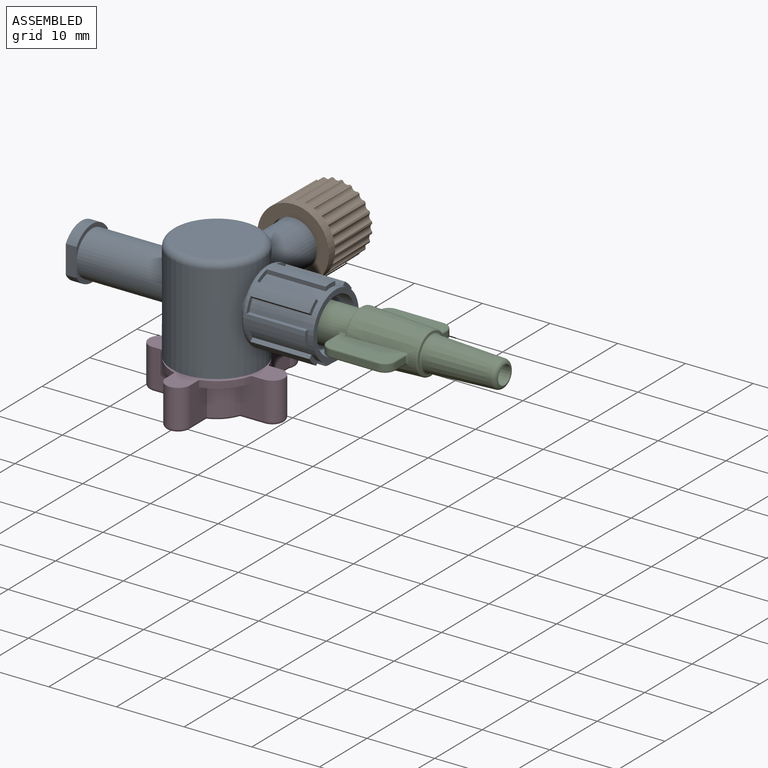
[diagram: assembled view]
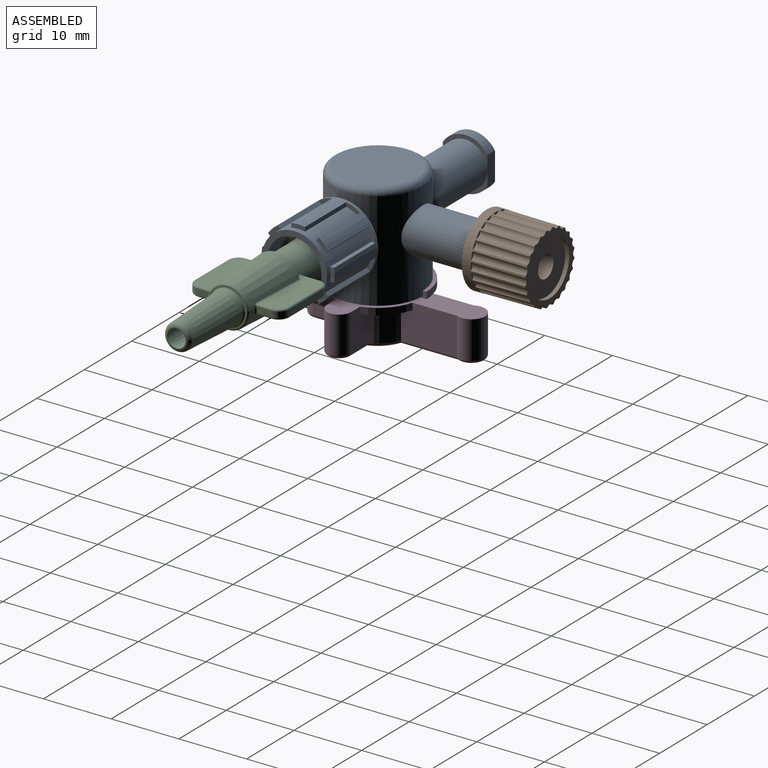
[diagram: assembled view, second angle]
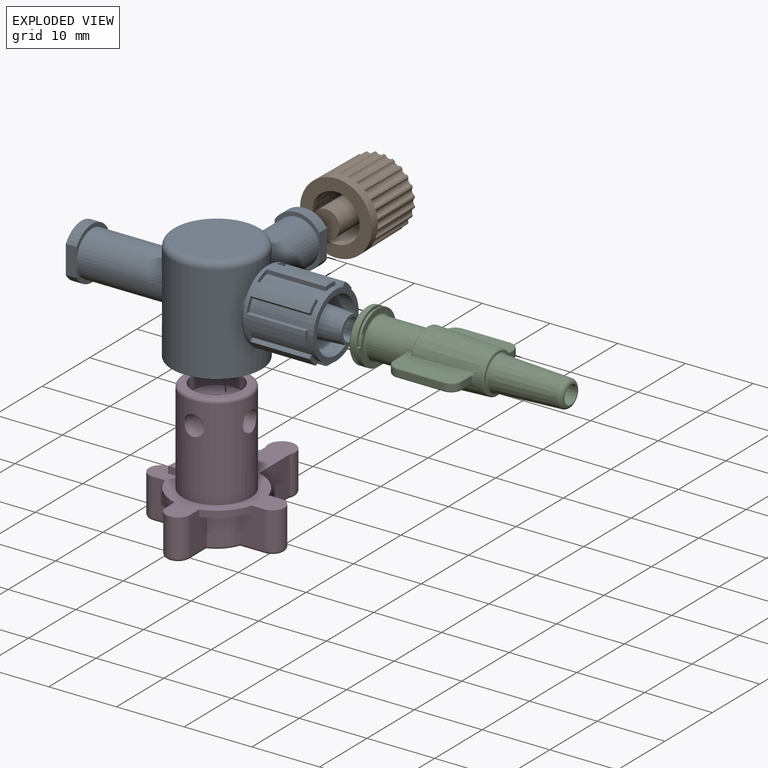
[diagram: exploded view]
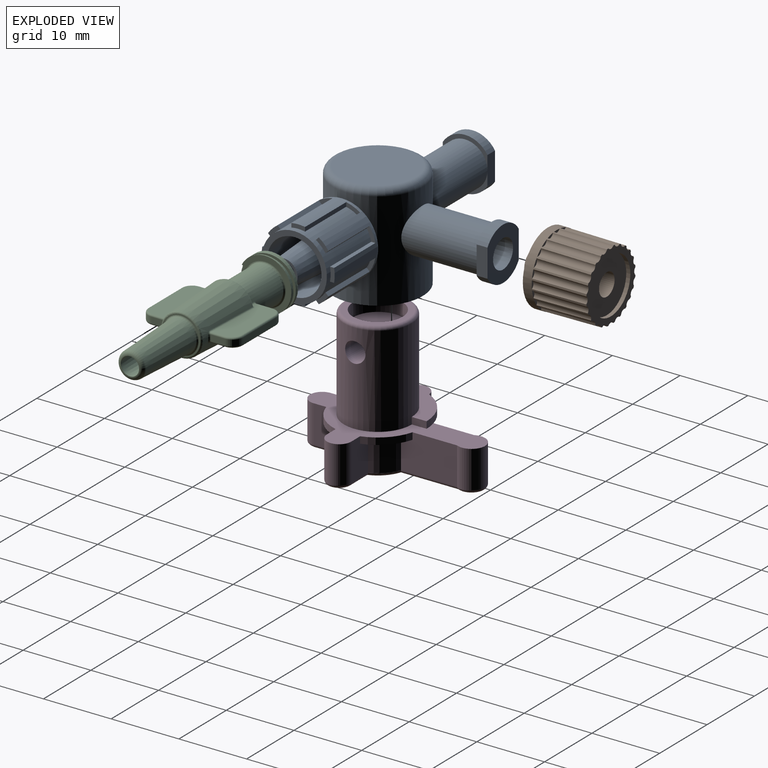
[diagram: exploded view, second angle]
ASSEMBLY  parts=4 mates=3
PART A: 72 faces, bbox 39.8x25.7x15.6 mm
  f0: cylinder r=5.25mm len=13.7mm, axis (0,0,-1), area 430.5mm2, adj f5,f38,f63,f70,f71
  f1: cylinder r=3.9mm len=6.6mm, axis (-1,0,0), area 12.6mm2, adj f2,f27,f68,f69
  f2: plane 6.6x3.9mm, normal (1,0,0), area 5.1mm2, adj f1,f32,f68,f69
  f3: cylinder r=3.9mm len=6.6mm, axis (0,-1,0), area 12.6mm2, adj f34,f36,f66,f67
  f4: plane 6.6x3.9mm, normal (0,-1,0), area 5.1mm2, adj f33,f35,f66,f67
  f5: plane 13.3x13.3mm, normal (0,0,-1), area 52.3mm2, adj f0,f25
  f6: plane 2.05x1.28mm, normal (1,0,0), area 1.2mm2, adj f8,f17,f40,f60
  f7: plane 2.05x1.28mm, normal (1,0,0), area 1.2mm2, adj f8,f17,f57,f61
  f8: cylinder r=4.8mm len=9.6mm, axis (-1,0,0), area 146.3mm2, adj f6,f7,f9,f10,f11,f12,f13,f14
  f9: plane 2.05x1.28mm, normal (1,0,0), area 1.2mm2, adj f8,f17,f54,f58
  f10: plane 2.05x1.28mm, normal (1,0,0), area 1.2mm2, adj f8,f17,f51,f55
  f11: plane 2.05x1.28mm, normal (1,0,0), area 1.2mm2, adj f8,f17,f48,f52
  f12: plane 2.05x1.28mm, normal (1,0,0), area 1.2mm2, adj f8,f17,f45,f49
  f13: plane 2.05x1.28mm, normal (1,0,0), area 1.2mm2, adj f8,f17,f42,f46
  f14: plane 2.05x1.28mm, normal (1,0,0), area 1.2mm2, adj f8,f17,f39,f43
  f15: cylinder r=3.15mm len=6.3mm, axis (-1,0,0), area 20.6mm2, adj f19,f25
  f16: cone r=1.6mm half-angle=0.3deg, axis (1,0,0), area 130.4mm2, adj f20,f26
  f17: cylinder r=5.4mm len=10.8mm, axis (-1,0,0), area 150.2mm2, adj f6,f7,f9,f10,f11,f12,f13,f14
  f18: torus R=4.9mm, axis (-1,0,0), area 25.8mm2, adj f17,f19
  f19: plane 9.8x9.8mm, normal (-1,0,0), area 44.3mm2, adj f15,f18
  f20: plane 4x4mm, normal (1,0,0), area 4.5mm2, adj f16,f21
  f21: cone r=2.68mm half-angle=3.5deg, axis (-1,0,0), area 163.9mm2, adj f20,f22
  f22: plane 8x8mm, normal (1,0,0), area 27.7mm2, adj f21,f23
  f23: cylinder r=4mm len=8.93mm, axis (-1,0,0), area 224.4mm2, adj f22,f24
  f24: plane 9.6x9.6mm, normal (1,0,0), area 22.1mm2, adj f8,f23
  f25: cylinder r=6.65mm len=14.6mm, axis (0,0,-1), area 507.2mm2, adj f5,f15,f32,f35,f65
  f26: cylinder r=6.65mm len=3.07mm, axis (0,0,-1), area 0.3mm2, adj f16,f70
  f27: plane 7.8x6.6mm, normal (-1,0,0), area 30.3mm2, adj f1,f28,f30,f68,f69
  f28: cone r=1.51mm half-angle=3.5deg, axis (-1,0,0), area 114.2mm2, adj f27,f29
  f29: cone r=1.5mm half-angle=0.1deg, axis (-1,0,0), area 31.9mm2, adj f28,f71
  f30: cylinder r=3.9mm len=6.6mm, axis (-1,0,0), area 12.6mm2, adj f27,f31,f68,f69
  f31: plane 6.6x3.9mm, normal (1,0,0), area 5.1mm2, adj f30,f32,f68,f69
  f32: cylinder r=3.3mm len=12.63mm, axis (-1,0,0), area 252.6mm2, adj f2,f25,f31
  f33: cylinder r=3.9mm len=6.6mm, axis (0,-1,0), area 12.6mm2, adj f4,f36,f66,f67
  f34: plane 6.6x3.9mm, normal (0,-1,0), area 5.1mm2, adj f3,f35,f66,f67
  f35: cylinder r=3.3mm len=11.13mm, axis (0,-1,0), area 221.5mm2, adj f4,f25,f34
  f36: plane 7.8x6.6mm, normal (0,1,0), area 30.5mm2, adj f3,f33,f37,f66,f67
  f37: cone r=2.1mm half-angle=3.5deg, axis (0,1,0), area 111.9mm2, adj f36,f38
  f38: cylinder r=1.5mm len=3.59mm, axis (0,-1,0), area 32.8mm2, adj f0,f37
  f39: plane 8.7x0.61mm, normal (0,0,-1), area 5.3mm2, adj f8,f14,f17,f41
  f40: plane 8.7x0.61mm, normal (0,0,1), area 5.3mm2, adj f6,f8,f17,f41
  f41: plane 2x0.71mm, normal (1,0,0), area 1.2mm2, adj f8,f17,f39,f40
  f42: plane 8.7x0.43mm, normal (0,-0.71,-0.71), area 5.3mm2, adj f8,f13,f17,f44
  f43: plane 8.7x0.43mm, normal (0,0.71,0.71), area 5.3mm2, adj f8,f14,f17,f44
  f44: plane 1.85x1.85mm, normal (1,0,0), area 1.2mm2, adj f8,f17,f42,f43
  f45: plane 8.7x0.61mm, normal (0,-1,0), area 5.3mm2, adj f8,f12,f17,f47
  f46: plane 8.7x0.61mm, normal (0,1,0), area 5.3mm2, adj f8,f13,f17,f47
  f47: plane 2x0.71mm, normal (1,0,0), area 1.2mm2, adj f8,f17,f45,f46
  f48: plane 8.7x0.43mm, normal (0,-0.71,0.71), area 5.3mm2, adj f8,f11,f17,f50
  f49: plane 8.7x0.43mm, normal (0,0.71,-0.71), area 5.3mm2, adj f8,f12,f17,f50
  f50: plane 1.85x1.85mm, normal (1,0,0), area 1.2mm2, adj f8,f17,f48,f49
  f51: plane 8.7x0.61mm, normal (0,0,1), area 5.3mm2, adj f8,f10,f17,f53
  f52: plane 8.7x0.61mm, normal (0,0,-1), area 5.3mm2, adj f8,f11,f17,f53
  f53: plane 2x0.71mm, normal (1,0,0), area 1.2mm2, adj f8,f17,f51,f52
  f54: plane 8.7x0.43mm, normal (0,0.71,0.71), area 5.3mm2, adj f8,f9,f17,f56
  f55: plane 8.7x0.43mm, normal (0,-0.71,-0.71), area 5.3mm2, adj f8,f10,f17,f56
  f56: plane 1.85x1.85mm, normal (1,0,0), area 1.2mm2, adj f8,f17,f54,f55
  f57: plane 8.7x0.61mm, normal (0,1,0), area 5.3mm2, adj f7,f8,f17,f59
  f58: plane 8.7x0.61mm, normal (0,-1,0), area 5.3mm2, adj f8,f9,f17,f59
  f59: plane 2x0.71mm, normal (1,0,0), area 1.2mm2, adj f8,f17,f57,f58
  f60: plane 8.7x0.43mm, normal (0,0.71,-0.71), area 5.3mm2, adj f6,f8,f17,f62
  f61: plane 8.7x0.43mm, normal (0,-0.71,0.71), area 5.3mm2, adj f7,f8,f17,f62
  f62: plane 1.85x1.85mm, normal (1,0,0), area 1.2mm2, adj f8,f17,f60,f61
  f63: plane 10.5x10.5mm, normal (0,0,-1), area 86.6mm2, adj f0
  f64: plane 11.3x11.3mm, normal (0,0,1), area 100.3mm2, adj f65
  f65: torus R=5.65mm, axis (0,0,-1), area 62mm2, adj f25,f64
  f66: plane 4.16x1.6mm, normal (1,0,0), area 6.7mm2, adj f3,f4,f33,f34,f36
  f67: plane 4.16x1.6mm, normal (-1,0,0), area 6.7mm2, adj f3,f4,f33,f34,f36
  f68: plane 4.16x1.6mm, normal (0,1,0), area 6.7mm2, adj f1,f2,f27,f30,f31
  f69: plane 4.16x1.6mm, normal (0,-1,0), area 6.7mm2, adj f1,f2,f27,f30,f31
  f70: cylinder r=1.5mm len=3.01mm, axis (1,0,0), area 13.6mm2, adj f0,f26
  f71: cylinder r=1.5mm len=3.01mm, axis (1,0,0), area 14mm2, adj f0,f29
PART B: 59 faces, bbox 10.6x10.6x11.4 mm
  f0: cylinder r=1.64mm len=9mm, axis (0,0,1), area 92.7mm2, adj f1,f56
  f1: plane 3.28x3.28mm, normal (0,0,-1), area 8.4mm2, adj f0
  f2: plane 1.01x0.67mm, normal (0,0,-1), area 0.3mm2, adj f3,f50
  f3: cylinder r=0.67mm len=8mm, axis (0,0,1), area 10.5mm2, adj f2,f50,f57
  f4: plane 1.01x0.67mm, normal (0,0,-1), area 0.3mm2, adj f5,f50
  f5: cylinder r=0.67mm len=8mm, axis (0,0,1), area 10.5mm2, adj f4,f50,f57
  f6: plane 1.16x0.37mm, normal (0,0,-1), area 0.3mm2, adj f7,f50
  f7: cylinder r=0.67mm len=8mm, axis (0,0,1), area 10.5mm2, adj f6,f50,f57
  f8: plane 1.01x0.67mm, normal (0,0,-1), area 0.3mm2, adj f9,f50
  f9: cylinder r=0.67mm len=8mm, axis (0,0,1), area 10.5mm2, adj f8,f50,f57
  f10: plane 1.01x0.67mm, normal (0,0,-1), area 0.3mm2, adj f11,f50
  f11: cylinder r=0.67mm len=8mm, axis (0,0,1), area 10.5mm2, adj f10,f50,f57
  f12: plane 1.16x0.37mm, normal (0,0,-1), area 0.3mm2, adj f13,f50
  f13: cylinder r=0.67mm len=8mm, axis (0,0,1), area 10.5mm2, adj f12,f50,f57
  f14: plane 1.01x0.67mm, normal (0,0,-1), area 0.3mm2, adj f15,f50
  f15: cylinder r=0.67mm len=8mm, axis (0,0,1), area 10.5mm2, adj f14,f50,f57
  f16: plane 1.01x0.67mm, normal (0,0,-1), area 0.3mm2, adj f17,f50
  f17: cylinder r=0.67mm len=8mm, axis (0,0,1), area 10.5mm2, adj f16,f50,f57
  f18: plane 1.16x0.37mm, normal (0,0,-1), area 0.3mm2, adj f19,f50
  f19: cylinder r=0.67mm len=8mm, axis (0,0,1), area 10.5mm2, adj f18,f50,f57
  f20: plane 1.01x0.67mm, normal (0,0,-1), area 0.3mm2, adj f21,f50
  f21: cylinder r=0.67mm len=8mm, axis (0,0,1), area 10.5mm2, adj f20,f50,f57
  f22: plane 1.01x0.67mm, normal (0,0,-1), area 0.3mm2, adj f23,f50
  f23: cylinder r=0.67mm len=8mm, axis (0,0,1), area 10.5mm2, adj f22,f50,f57
  f24: plane 1.16x0.37mm, normal (0,0,-1), area 0.3mm2, adj f25,f50
  f25: cylinder r=0.67mm len=8mm, axis (0,0,1), area 10.5mm2, adj f24,f50,f57
  f26: plane 1.12x0.5mm, normal (0,0,-1), area 0.3mm2, adj f27,f50
  f27: cylinder r=0.67mm len=8mm, axis (0,0,1), area 10.5mm2, adj f26,f50,f57
  f28: plane 0.85x0.85mm, normal (0,0,-1), area 0.3mm2, adj f29,f50
  f29: cylinder r=0.67mm len=8mm, axis (0,0,1), area 10.5mm2, adj f28,f50,f57
  f30: plane 1.12x0.5mm, normal (0,0,-1), area 0.3mm2, adj f31,f50
  f31: cylinder r=0.67mm len=8mm, axis (0,0,1), area 10.5mm2, adj f30,f50,f57
  f32: plane 1.12x0.5mm, normal (0,0,-1), area 0.3mm2, adj f33,f50
  f33: cylinder r=0.67mm len=8mm, axis (0,0,1), area 10.5mm2, adj f32,f50,f57
  f34: plane 0.85x0.85mm, normal (0,0,-1), area 0.3mm2, adj f35,f50
  f35: cylinder r=0.67mm len=8mm, axis (0,0,1), area 10.5mm2, adj f34,f50,f57
  f36: plane 1.12x0.5mm, normal (0,0,-1), area 0.3mm2, adj f37,f50
  f37: cylinder r=0.67mm len=8mm, axis (0,0,1), area 10.5mm2, adj f36,f50,f57
  f38: plane 1.12x0.5mm, normal (0,0,-1), area 0.3mm2, adj f39,f50
  f39: cylinder r=0.67mm len=8mm, axis (0,0,1), area 10.5mm2, adj f38,f50,f57
  f40: cylinder r=0.67mm len=8mm, axis (0,0,1), area 10.5mm2, adj f41,f50,f57
  f41: plane 0.85x0.85mm, normal (0,0,-1), area 0.3mm2, adj f40,f50
  f42: plane 1.12x0.5mm, normal (0,0,-1), area 0.3mm2, adj f43,f50
  f43: cylinder r=0.67mm len=8mm, axis (0,0,1), area 10.5mm2, adj f42,f50,f57
  f44: plane 1.12x0.5mm, normal (0,0,-1), area 0.3mm2, adj f45,f50
  f45: cylinder r=0.67mm len=8mm, axis (0,0,1), area 10.5mm2, adj f44,f50,f57
  f46: cylinder r=0.67mm len=8mm, axis (0,0,1), area 10.5mm2, adj f47,f50,f57
  f47: plane 0.85x0.85mm, normal (0,0,-1), area 0.3mm2, adj f46,f50
  f48: plane 1.12x0.5mm, normal (0,0,-1), area 0.3mm2, adj f49,f50
  f49: cylinder r=0.67mm len=8mm, axis (0,0,1), area 10.5mm2, adj f48,f50,f57
  f50: cone r=5.3mm half-angle=0.6deg, axis (0,0,1), area 93.7mm2, adj f2,f3,f4,f5,f6,f7,f8,f9
  f51: cylinder r=2mm len=9mm, axis (0,0,1), area 113.1mm2, adj f52,f54
  f52: plane 4x4mm, normal (0,0,1), area 12.6mm2, adj f51
  f53: cone r=3.5mm half-angle=0.6deg, axis (0,0,1), area 150.1mm2, adj f54,f58
  f54: plane 6.85x6.85mm, normal (0,0,1), area 24.3mm2, adj f51,f53
  f55: cylinder r=4.1mm len=8.2mm, axis (0,0,1), area 15.5mm2, adj f56,f57
  f56: plane 8.2x8.2mm, normal (0,0,-1), area 44.4mm2, adj f0,f55
  f57: plane 10.35x10.35mm, normal (0,0,-1), area 27.1mm2, adj f3,f5,f7,f9,f11,f13,f15,f17
  f58: plane 10.6x10.6mm, normal (0,0,1), area 49.8mm2, adj f50,f53
PART C: 101 faces, bbox 30.5x8.7x14.3 mm
  f0: cone r=3.75mm half-angle=45deg, axis (1,0,0), area 8.4mm2, adj f1,f2,f3,f100
  f1: plane 0.51x0.38mm, normal (0,1,0), area 0.2mm2, adj f0,f2,f6,f8,f100
  f2: bspline ~7.75x7.75mm, area 8.9mm2, adj f0,f1,f6,f7,f100
  f3: plane 7.24x7.24mm, normal (-1,0,0), area 23.3mm2, adj f0,f4
  f4: cone r=2.25mm half-angle=45deg, axis (-1,0,0), area 5.1mm2, adj f3,f5
  f5: cylinder r=2.13mm len=4.25mm, axis (1,0,0), area 5.1mm2, adj f4,f93
  f6: cylinder r=3.49mm len=6.99mm, axis (1,0,0), area 11.1mm2, adj f1,f2,f7,f8,f9
  f7: plane 0.43x0.38mm, normal (0,-1,0), area 0.2mm2, adj f2,f6,f9,f100
  f8: bspline ~8.73x8.28mm, area 8.2mm2, adj f1,f6,f9,f100
  f9: plane 7.75x7.75mm, normal (1,0,0), area 16.6mm2, adj f6,f7,f8,f64,f100
  f10: cylinder r=0.25mm len=0.68mm, axis (-1,0,0), area 0.2mm2, adj f11,f24,f34,f56
  f11: bspline ~0.51x0.47mm, area 0.2mm2, adj f10,f12,f33,f56
  f12: torus R=3.09mm, axis (-1,0,0), area 0.3mm2, adj f11,f13,f32,f56
  f13: bspline ~0.51x0.47mm, area 0.2mm2, adj f12,f14,f31,f56
  f14: cylinder r=0.25mm len=0.68mm, axis (1,0,0), area 0.2mm2, adj f13,f25,f56,f63
  f15: bspline ~0.26x0.25mm, area 0.1mm2, adj f16,f25,f26,f63
  f16: bspline ~0.53x0.52mm, area 0.2mm2, adj f15,f17,f27,f63
  f17: bspline ~8.45x0.64mm, area 2.8mm2, adj f16,f18,f28,f63
  f18: bspline ~0.51x0.47mm, area 0.2mm2, adj f17,f19,f28,f76
  f19: torus R=3.36mm, axis (1,0,0), area 0.3mm2, adj f18,f20,f28,f72
  f20: bspline ~0.51x0.47mm, area 0.2mm2, adj f19,f23,f28,f65
  f21: bspline ~0.53x0.52mm, area 0.2mm2, adj f22,f23,f30,f34
  f22: bspline ~0.26x0.25mm, area 0.1mm2, adj f21,f24,f34,f62
  f23: bspline ~8.45x0.64mm, area 2.8mm2, adj f20,f21,f29,f34
  f24: sphere r=0.25mm, area 0.1mm2, adj f10,f22,f61
  f25: sphere r=0.25mm, area 0.1mm2, adj f14,f15,f55
  f26: cone r=3.17mm half-angle=87.4deg, axis (1,0,0), area 1.5mm2, adj f15,f27,f39,f55
  f27: torus R=3.25mm, axis (1,0,0), area 3.6mm2, adj f16,f26,f28,f40
  f28: cone r=3.28mm half-angle=2.6deg, axis (-1,0,0), area 173.5mm2, adj f17,f18,f19,f20,f27,f29,f30,f35
  f29: cone r=3.28mm half-angle=2.6deg, axis (-1,0,0), area 0.4mm2, adj f23,f28,f30
  f30: torus R=3.25mm, axis (1,0,0), area 3.6mm2, adj f21,f28,f29,f37,f62
  f31: cylinder r=0.25mm len=2.48mm, axis (0,0,-1), area 1mm2, adj f13,f32,f63,f73
  f32: plane 2.36x0.89mm, normal (-1,0,0), area 2.1mm2, adj f12,f31,f33,f69
  f33: cylinder r=0.25mm len=2.48mm, axis (0,0,1), area 1mm2, adj f11,f32,f34,f68
  f34: plane 9.65x3.81mm, normal (0,1,0), area 31.5mm2, adj f10,f21,f22,f23,f33,f65,f66,f67
  f35: bspline ~0.51x0.47mm, area 0.2mm2, adj f28,f36,f43,f77
  f36: bspline ~8.45x0.64mm, area 2.8mm2, adj f28,f35,f37,f51
  f37: bspline ~0.53x0.52mm, area 0.2mm2, adj f30,f36,f38,f51
  f38: bspline ~0.26x0.25mm, area 0.1mm2, adj f37,f49,f51,f62
  f39: bspline ~0.26x0.25mm, area 0.1mm2, adj f26,f40,f50,f85
  f40: bspline ~0.53x0.52mm, area 0.2mm2, adj f27,f39,f41,f85
  f41: bspline ~8.45x0.64mm, area 2.8mm2, adj f28,f40,f42,f85
  f42: bspline ~0.51x0.47mm, area 0.2mm2, adj f28,f41,f43,f84
  f43: torus R=3.36mm, axis (1,0,0), area 0.3mm2, adj f28,f35,f42,f92
  f44: cylinder r=0.25mm len=0.68mm, axis (1,0,0), area 0.2mm2, adj f45,f49,f51,f56
  f45: bspline ~0.51x0.47mm, area 0.2mm2, adj f44,f46,f52,f56
  f46: torus R=3.09mm, axis (-1,0,0), area 0.3mm2, adj f45,f47,f53,f56
  f47: bspline ~0.51x0.47mm, area 0.2mm2, adj f46,f48,f54,f56
  f48: cylinder r=0.25mm len=0.68mm, axis (-1,0,0), area 0.2mm2, adj f47,f50,f56,f85
  f49: sphere r=0.25mm, area 0.1mm2, adj f38,f44,f61
  f50: sphere r=0.25mm, area 0.1mm2, adj f39,f48,f55
  f51: plane 9.65x3.81mm, normal (0,1,0), area 31.5mm2, adj f36,f37,f38,f44,f52,f77,f78,f79
  f52: cylinder r=0.25mm len=2.48mm, axis (0,0,-1), area 1mm2, adj f45,f51,f53,f80
  f53: plane 2.36x0.89mm, normal (-1,0,0), area 2.1mm2, adj f46,f52,f54,f91
  f54: cylinder r=0.25mm len=2.48mm, axis (0,0,1), area 1mm2, adj f47,f53,f81,f85
  f55: torus R=3.09mm, axis (1,0,0), area 2.8mm2, adj f25,f26,f50,f56
  f56: cylinder r=2.83mm len=6.75mm, axis (1,0,0), area 116.4mm2, adj f10,f11,f12,f13,f14,f44,f45,f46
  f57: torus R=2.68mm, axis (1,0,0), area 6.1mm2, adj f58,f59
  f58: plane 5.61x5.61mm, normal (1,0,0), area 2.1mm2, adj f57,f60
  f59: cone r=2.2mm half-angle=2.6deg, axis (-1,0,0), area 137.6mm2, adj f57,f88
  f60: torus R=2.81mm, axis (1,0,0), area 7.2mm2, adj f28,f58
  f61: torus R=3.09mm, axis (1,0,0), area 2.8mm2, adj f24,f49,f56,f62
  f62: cone r=3.17mm half-angle=87.4deg, axis (1,0,0), area 1.5mm2, adj f22,f30,f38,f61
  f63: plane 9.65x3.81mm, normal (0,-1,0), area 31.5mm2, adj f14,f15,f16,f17,f31,f73,f74,f75
  f64: torus R=3.09mm, axis (1,0,0), area 7.3mm2, adj f9,f56
  f65: cylinder r=0.25mm len=2.17mm, axis (0,0,-1), area 0.8mm2, adj f20,f34,f66,f72
  f66: torus R=1.33mm, axis (0,-1,0), area 0.9mm2, adj f34,f65,f67,f71
  f67: cylinder r=0.25mm len=6.99mm, axis (-1,0,0), area 2.8mm2, adj f34,f66,f68,f70
  f68: torus R=1.33mm, axis (0,-1,0), area 0.9mm2, adj f33,f34,f67,f69
  f69: cylinder r=1.59mm len=1.59mm, axis (0,1,0), area 2.2mm2, adj f32,f68,f70,f73
  f70: plane 6.99x0.89mm, normal (0,0,-1), area 6.2mm2, adj f67,f69,f71,f74
  f71: cylinder r=1.59mm len=1.59mm, axis (0,1,0), area 2.2mm2, adj f66,f70,f72,f75
  f72: plane 2.09x0.89mm, normal (1,0,0), area 1.8mm2, adj f19,f65,f71,f76
  f73: torus R=1.33mm, axis (0,1,0), area 0.9mm2, adj f31,f63,f69,f74
  f74: cylinder r=0.25mm len=6.99mm, axis (1,0,0), area 2.8mm2, adj f63,f70,f73,f75
  f75: torus R=1.33mm, axis (0,1,0), area 0.9mm2, adj f63,f71,f74,f76
  f76: cylinder r=0.25mm len=2.17mm, axis (0,0,1), area 0.8mm2, adj f18,f63,f72,f75
  f77: cylinder r=0.25mm len=2.17mm, axis (0,0,1), area 0.8mm2, adj f35,f51,f78,f92
  f78: torus R=1.33mm, axis (0,-1,0), area 0.9mm2, adj f51,f77,f79,f89
  f79: cylinder r=0.25mm len=6.99mm, axis (-1,0,0), area 2.8mm2, adj f51,f78,f80,f90
  f80: torus R=1.33mm, axis (0,-1,0), area 0.9mm2, adj f51,f52,f79,f91
  f81: torus R=1.33mm, axis (0,1,0), area 0.9mm2, adj f54,f82,f85,f91
  f82: cylinder r=0.25mm len=6.99mm, axis (1,0,0), area 2.8mm2, adj f81,f83,f85,f90
  f83: torus R=1.33mm, axis (0,1,0), area 0.9mm2, adj f82,f84,f85,f89
  f84: cylinder r=0.25mm len=2.17mm, axis (0,0,-1), area 0.8mm2, adj f42,f83,f85,f92
  f85: plane 9.65x3.81mm, normal (0,-1,0), area 31.5mm2, adj f39,f40,f41,f48,f54,f81,f82,f83
  f86: torus R=1.96mm, axis (1,0,0), area 1.6mm2, adj f87,f88
  f87: cone r=1.56mm half-angle=2.6deg, axis (-1,0,0), area 111.4mm2, adj f86,f99
  f88: torus R=1.35mm, axis (1,0,0), area 10.6mm2, adj f59,f86
  f89: cylinder r=1.59mm len=1.59mm, axis (0,1,0), area 2.2mm2, adj f78,f83,f90,f92
  f90: plane 6.99x0.89mm, normal (0,0,1), area 6.2mm2, adj f79,f82,f89,f91
  f91: cylinder r=1.59mm len=1.59mm, axis (0,1,0), area 2.2mm2, adj f53,f80,f81,f90
  f92: plane 2.09x0.89mm, normal (1,0,0), area 1.8mm2, adj f43,f77,f84,f89
  f93: plane 6.48x6.48mm, normal (1,0,0), area 18.7mm2, adj f5,f94
  f94: cylinder r=3.24mm len=6.48mm, axis (1,0,0), area 7.8mm2, adj f93,f95
  f95: plane 6.48x6.48mm, normal (-1,0,0), area 17.8mm2, adj f94,f96
  f96: cylinder r=2.2mm len=8.49mm, axis (1,0,0), area 117.2mm2, adj f95,f97
  f97: cone r=3.15mm half-angle=87.4deg, axis (1,0,0), area 10.4mm2, adj f96,f98
  f98: cone r=2.65mm half-angle=2.6deg, axis (-1,0,0), area 153.6mm2, adj f97,f99
  f99: plane 4.88x4.88mm, normal (-1,0,0), area 8.2mm2, adj f87,f98
  f100: cylinder r=3.87mm len=7.75mm, axis (1,0,0), area 21.7mm2, adj f0,f1,f2,f7,f8,f9
PART D: 112 faces, bbox 20.3x26.1x20.2 mm
  f0: plane 25.8x20mm, normal (0,0,1), area 107.8mm2, adj f1,f4,f5,f6,f8,f9,f10,f12
  f1: cylinder r=5mm len=13.5mm, axis (0,0,-1), area 394.8mm2, adj f0,f49,f52,f53,f108,f110,f111
  f2: plane 24.8x19mm, normal (0,0,-1), area 57.5mm2, adj f33,f34,f35,f36,f37,f38,f39,f40
  f3: cylinder r=5mm len=4.5mm, axis (0,0,1), area 18.8mm2, adj f4,f18,f29,f47
  f4: plane 5.5x3.54mm, normal (0,-1,0), area 17.8mm2, adj f0,f3,f5,f22,f29,f45
  f5: cylinder r=1.8mm len=5.5mm, axis (0,0,1), area 31.1mm2, adj f0,f4,f6,f43
  f6: plane 5.5x3.54mm, normal (0,1,0), area 17.8mm2, adj f0,f5,f7,f23,f26,f41,f107
  f7: cylinder r=5mm len=4.5mm, axis (0,0,1), area 18.8mm2, adj f6,f8,f26,f39
  f8: plane 8.26x5.5mm, normal (-1,0,0), area 43.8mm2, adj f0,f7,f9,f23,f26,f37,f107
  f9: cylinder r=2mm len=5.5mm, axis (0,0,1), area 44.5mm2, adj f0,f8,f10,f35
  f10: plane 8.26x5.5mm, normal (1,0,0), area 43.8mm2, adj f0,f9,f11,f24,f27,f33
  f11: cylinder r=5mm len=4.5mm, axis (0,0,1), area 18.8mm2, adj f10,f12,f27,f34
  f12: plane 5.5x3.54mm, normal (0,1,0), area 17.8mm2, adj f0,f11,f13,f24,f27,f36
  f13: cylinder r=1.8mm len=5.5mm, axis (0,0,1), area 31.1mm2, adj f0,f12,f14,f38
  f14: plane 5.5x3.54mm, normal (0,-1,0), area 17.8mm2, adj f0,f13,f15,f25,f28,f40
  f15: cylinder r=5mm len=4.5mm, axis (0,0,1), area 18.8mm2, adj f14,f16,f28,f42
  f16: plane 5.5x3.54mm, normal (1,0,0), area 17.8mm2, adj f0,f15,f17,f25,f28,f44
  f17: cylinder r=1.8mm len=5.5mm, axis (0,0,1), area 31.1mm2, adj f0,f16,f18,f46
  f18: plane 5.5x3.54mm, normal (-1,0,0), area 17.8mm2, adj f0,f3,f17,f22,f29,f48
  f19: cylinder r=3.75mm len=7.5mm, axis (0,0,1), area 99mm2, adj f50,f51
  f20: plane 7.3x7.3mm, normal (0,0,-1), area 41.9mm2, adj f21
  f21: cylinder r=3.65mm len=8mm, axis (0,0,-1), area 183.5mm2, adj f20,f50
  f22: cylinder r=6.6mm len=4.57mm, axis (0,0,-1), area 6.7mm2, adj f0,f4,f18,f29
  f23: cylinder r=6.6mm len=4.57mm, axis (0,0,-1), area 6.7mm2, adj f6,f8,f26,f107
  f24: cylinder r=6.6mm len=4.57mm, axis (0,0,-1), area 6.7mm2, adj f0,f10,f12,f27
  f25: cylinder r=6.6mm len=4.57mm, axis (0,0,-1), area 6.7mm2, adj f0,f14,f16,f28
  f26: plane 4.57x4.54mm, normal (0,0,-1), area 8.7mm2, adj f6,f7,f8,f23
  f27: plane 4.57x4.54mm, normal (0,0,-1), area 8.7mm2, adj f10,f11,f12,f24
  f28: plane 4.57x4.54mm, normal (0,0,-1), area 8.7mm2, adj f14,f15,f16,f25
  f29: plane 4.57x4.54mm, normal (0,0,-1), area 8.7mm2, adj f3,f4,f18,f22
  f30: plane 7.3x7.3mm, normal (0,0,1), area 41.9mm2, adj f31
  f31: cylinder r=3.65mm len=7.3mm, axis (0,0,-1), area 45.9mm2, adj f30,f32
  f32: plane 9x9mm, normal (0,0,1), area 21.8mm2, adj f31,f49
  f33: cylinder r=0.5mm len=8.75mm, axis (0,1,0), area 6.7mm2, adj f2,f10,f34,f35
  f34: torus R=4.5mm, axis (0,0,-1), area 3.4mm2, adj f2,f11,f33,f36
  f35: torus R=1.5mm, axis (0,0,-1), area 5.9mm2, adj f2,f9,f33,f37
  f36: cylinder r=0.5mm len=3.89mm, axis (-1,0,0), area 2.9mm2, adj f2,f12,f34,f38
  f37: cylinder r=0.5mm len=8.75mm, axis (0,-1,0), area 6.7mm2, adj f2,f8,f35,f39
  f38: torus R=1.3mm, axis (0,0,-1), area 4mm2, adj f2,f13,f36,f40
  f39: torus R=4.5mm, axis (0,0,-1), area 3.4mm2, adj f2,f7,f37,f41
  f40: cylinder r=0.5mm len=3.89mm, axis (1,0,0), area 2.9mm2, adj f2,f14,f38,f42
  f41: cylinder r=0.5mm len=3.89mm, axis (-1,0,0), area 2.9mm2, adj f2,f6,f39,f43
  f42: torus R=4.5mm, axis (0,0,-1), area 3.4mm2, adj f2,f15,f40,f44
  f43: torus R=1.3mm, axis (0,0,-1), area 4mm2, adj f2,f5,f41,f45
  f44: cylinder r=0.5mm len=3.89mm, axis (0,1,0), area 2.9mm2, adj f2,f16,f42,f46
  f45: cylinder r=0.5mm len=3.89mm, axis (1,0,0), area 2.9mm2, adj f2,f4,f43,f47
  f46: torus R=1.3mm, axis (0,0,-1), area 4mm2, adj f2,f17,f44,f48
  f47: torus R=4.5mm, axis (0,0,-1), area 3.4mm2, adj f2,f3,f45,f48
  f48: cylinder r=0.5mm len=3.89mm, axis (0,-1,0), area 2.9mm2, adj f2,f18,f46,f47
  f49: torus R=4.5mm, axis (0,0,1), area 23.8mm2, adj f1,f32
  f50: torus R=3.25mm, axis (0,0,1), area 7.5mm2, adj f19,f21
  f51: torus R=4.25mm, axis (0,0,-1), area 19.4mm2, adj f2,f19
  f52: cylinder r=1.5mm len=10.01mm, axis (1,0,0), area 83.1mm2, adj f1,f53
  f53: cylinder r=1.5mm len=5.01mm, axis (0,1,0), area 37mm2, adj f1,f52
  f54: plane 2.05x1.58mm, normal (0,0,-1), area 1.1mm2, adj f55,f56,f57,f58,f59,f60,f61,f62
  f55: extruded ~0.69x0.2mm, area 0.1mm2, adj f2,f54,f56,f60
  f56: extruded ~0.59x0.32mm, area 0.1mm2, adj f2,f54,f55,f57
  f57: extruded ~0.59x0.3mm, area 0.1mm2, adj f2,f54,f56,f58
  f58: extruded ~0.72x0.21mm, area 0.2mm2, adj f2,f54,f57,f59
  f59: extruded ~1.03x0.79mm, area 0.3mm2, adj f2,f54,f58,f60
  f60: extruded ~1.05x0.8mm, area 0.3mm2, adj f2,f54,f55,f59
  f61: extruded ~0.82x0.59mm, area 0.2mm2, adj f54,f62,f65,f66
  f62: extruded ~0.76x0.58mm, area 0.2mm2, adj f54,f61,f63,f66
  f63: extruded ~0.79x0.59mm, area 0.2mm2, adj f54,f62,f64,f66
  f64: cylinder r=1.12mm len=0.45mm, axis (0,0,-1), area 0.1mm2, adj f54,f63,f65,f66
  f65: extruded ~0.49x0.34mm, area 0.1mm2, adj f54,f61,f64,f66
  f66: plane 1.58x1.17mm, normal (0,0,-1), area 1.5mm2, adj f61,f62,f63,f64,f65
  f67: plane 0.21x0.2mm, normal (0,1,0), area 0mm2, adj f2,f68,f76,f77
  f68: plane 0.91x0.2mm, normal (1,0,0), area 0.2mm2, adj f2,f67,f69,f77
  f69: plane 0.78x0.2mm, normal (0,1,0), area 0.2mm2, adj f2,f68,f70,f77
  f70: plane 0.23x0.2mm, normal (1,0,0), area 0mm2, adj f2,f69,f71,f77
  f71: plane 0.78x0.2mm, normal (0,-1,0), area 0.2mm2, adj f2,f70,f72,f77
  f72: plane 0.62x0.2mm, normal (1,0,0), area 0.1mm2, adj f2,f71,f73,f77
  f73: plane 0.91x0.2mm, normal (0,1,0), area 0.2mm2, adj f2,f72,f74,f77
  f74: plane 0.23x0.2mm, normal (1,0,0), area 0mm2, adj f2,f73,f75,f77
  f75: plane 1.12x0.2mm, normal (0,-1,0), area 0.2mm2, adj f2,f74,f76,f77
  f76: plane 2x0.2mm, normal (-1,0,0), area 0.4mm2, adj f2,f67,f75,f77
  f77: plane 2x1.12mm, normal (0,0,-1), area 0.8mm2, adj f67,f68,f69,f70,f71,f72,f73,f74
  f78: plane 0.21x0.2mm, normal (0,1,0), area 0mm2, adj f2,f79,f87,f88
  f79: plane 0.91x0.2mm, normal (1,0,0), area 0.2mm2, adj f2,f78,f80,f88
  f80: plane 0.78x0.2mm, normal (0,1,0), area 0.2mm2, adj f2,f79,f81,f88
  f81: plane 0.23x0.2mm, normal (1,0,0), area 0mm2, adj f2,f80,f82,f88
  f82: plane 0.78x0.2mm, normal (0,-1,0), area 0.2mm2, adj f2,f81,f83,f88
  f83: plane 0.62x0.2mm, normal (1,0,0), area 0.1mm2, adj f2,f82,f84,f88
  f84: plane 0.91x0.2mm, normal (0,1,0), area 0.2mm2, adj f2,f83,f85,f88
  f85: plane 0.23x0.2mm, normal (1,0,0), area 0mm2, adj f2,f84,f86,f88
  f86: plane 1.12x0.2mm, normal (0,-1,0), area 0.2mm2, adj f2,f85,f87,f88
  f87: plane 2x0.2mm, normal (-1,0,0), area 0.4mm2, adj f2,f78,f86,f88
  f88: plane 2x1.12mm, normal (0,0,-1), area 0.8mm2, adj f78,f79,f80,f81,f82,f83,f84,f85
  f89: plane 0.88x0.63mm, normal (-0.58,0.81,0), area 0.2mm2, adj f2,f90,f93,f94
  f90: plane 2.35x0.2mm, normal (0,1,0), area 0.5mm2, adj f2,f89,f91,f94
  f91: plane 1.25x0.2mm, normal (1,0,0), area 0.3mm2, adj f2,f90,f92,f94
  f92: plane 2.35x0.2mm, normal (0,-1,0), area 0.5mm2, adj f2,f91,f93,f94
  f93: plane 0.88x0.62mm, normal (-0.58,-0.82,0), area 0.2mm2, adj f2,f89,f92,f94
  f94: plane 3.24x1.26mm, normal (0,0,-1), area 3.5mm2, adj f89,f90,f91,f92,f93
  f95: plane 0.88x0.63mm, normal (-0.81,-0.58,0), area 0.2mm2, adj f2,f96,f99,f100
  f96: plane 2.35x0.2mm, normal (-1,0,0), area 0.5mm2, adj f2,f95,f97,f100
  f97: plane 1.25x0.2mm, normal (0,1,0), area 0.3mm2, adj f2,f96,f98,f100
  f98: plane 2.35x0.2mm, normal (1,0,0), area 0.5mm2, adj f2,f97,f99,f100
  f99: plane 0.88x0.62mm, normal (0.82,-0.58,0), area 0.2mm2, adj f2,f95,f98,f100
  f100: plane 3.24x1.26mm, normal (0,0,-1), area 3.5mm2, adj f95,f96,f97,f98,f99
  f101: plane 0.88x0.63mm, normal (0.58,-0.81,0), area 0.2mm2, adj f2,f102,f105,f106
  f102: plane 2.35x0.2mm, normal (0,-1,0), area 0.5mm2, adj f2,f101,f103,f106
  f103: plane 1.25x0.2mm, normal (-1,0,0), area 0.3mm2, adj f2,f102,f104,f106
  f104: plane 2.35x0.2mm, normal (0,1,0), area 0.5mm2, adj f2,f103,f105,f106
  f105: plane 0.88x0.62mm, normal (0.58,0.82,0), area 0.2mm2, adj f2,f101,f104,f106
  f106: plane 3.24x1.26mm, normal (0,0,-1), area 3.5mm2, adj f101,f102,f103,f104,f105
  f107: plane 5.17x5.14mm, normal (0,0,-1), area 4.2mm2, adj f6,f8,f23,f109
  f108: plane 2.18x1mm, normal (1,0,0), area 2.2mm2, adj f0,f1,f109,f111
  f109: cylinder r=7.18mm len=7.21mm, axis (0,0,-1), area 11.3mm2, adj f0,f107,f108,f110,f111
  f110: plane 2.18x1mm, normal (0,-1,0), area 2.2mm2, adj f0,f1,f109,f111
  f111: plane 7.21x7.17mm, normal (0,0,1), area 20.9mm2, adj f1,f108,f109,f110
PLACE A t=(-7.01,5.46,-18.57)mm fixed
PLACE B rot(axis=(1,0,0),90deg) t=(-7.01,30.87,-18.57)mm
PLACE C rot(axis=(-1,0,0),90.2deg) t=(20.39,5.46,-18.57)mm
PLACE D t=(-7.01,5.46,-17.47)mm
MATE cylindrical B.f0 <-> A.f37  axis (0,-1,0) through (-7.01,19.47,-18.57)mm
MATE revolute D.f1 <-> A.f0  axis (0,0,-1) through (-7.01,5.46,-13.67)mm
MATE cylindrical C.f0 <-> A.f16  axis (1,0,0) through (5.56,5.46,-18.57)mm
